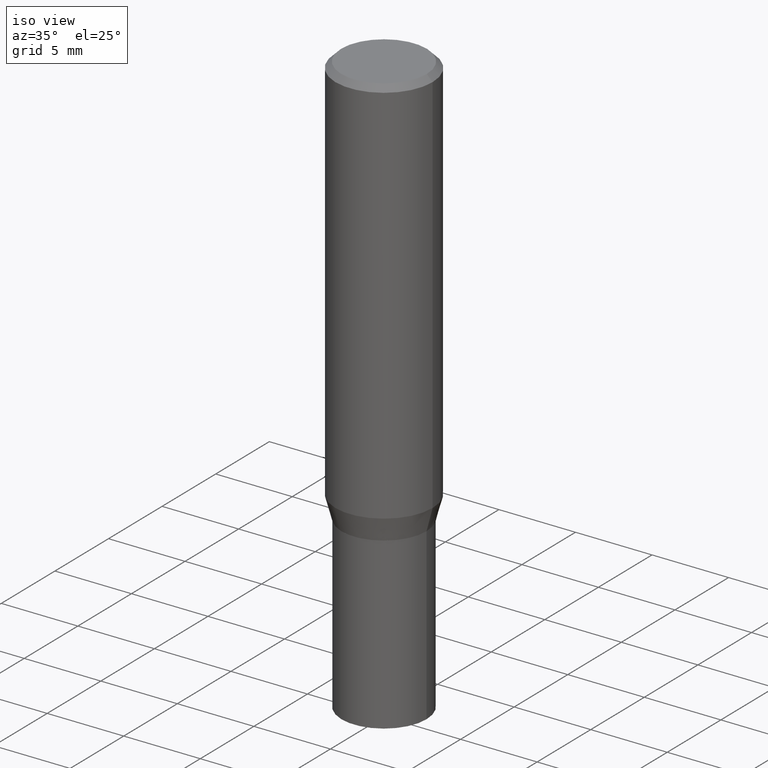
[diagram: clean part render]
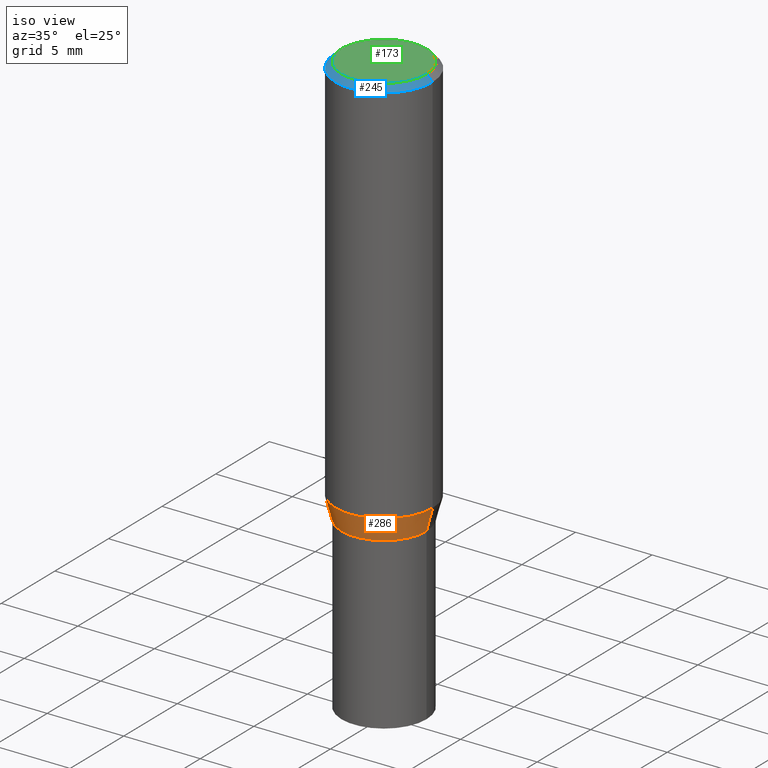
[diagram: same view with three faces highlighted in distinct colors, each labeled with its STEP entity id]
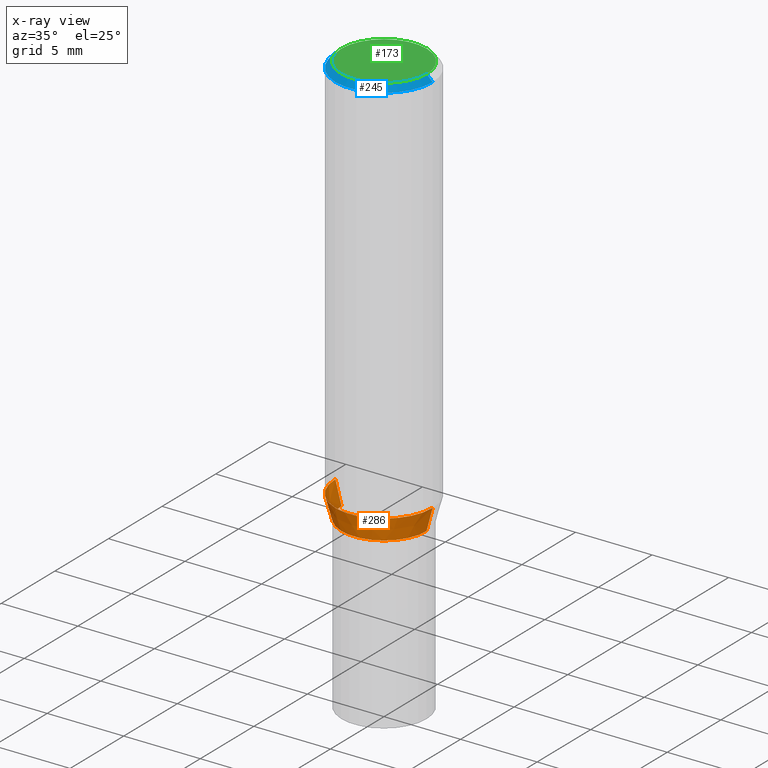
[diagram: x-ray of the same camera — body ghosted, the three highlighted faces saturated]
A machine part, iso view with three faces highlighted in distinct colors.
The next image is the same camera in x-ray (body ghosted, the three faces saturated) — at least one of them is partly hidden behind the body in this view.
Their STEP definitions:

[orange] entity #286 — the highlighted conical surface has half-angle 15 deg.
#9 = EDGE_CURVE ( 'NONE', #289, #229, #49, .T. ) ;
#15 = AXIS2_PLACEMENT_3D ( 'NONE', #407, #20, #89 ) ;
#16 = AXIS2_PLACEMENT_3D ( 'NONE', #453, #306, #266 ) ;
#17 = CARTESIAN_POINT ( 'NONE',  ( -0.1250000000000000000, -2.619992225786377762E-15, -1.004780007401926190 ) ) ;
#20 = DIRECTION ( 'NONE',  ( -2.445468806185136597E-29, 3.491481338843145583E-15, 1.000000000000000000 ) ) ;
#23 = FACE_OUTER_BOUND ( 'NONE', #251, .T. ) ;
#46 = LINE ( 'NONE', #117, #355 ) ;
#48 = EDGE_CURVE ( 'NONE', #465, #188, #46, .T. ) ;
#49 = LINE ( 'NONE', #253, #260 ) ;
#89 = DIRECTION ( 'NONE',  ( 1.000000000000000000, -6.982962677686262766E-15, 0.000000000000000000 ) ) ;
#94 = CONICAL_SURFACE ( 'NONE', #16, 0.1094000000000000528, 0.2617993877991510732 ) ;
#96 = DIRECTION ( 'NONE',  ( -2.445468806185136597E-29, 3.491481338843145583E-15, 1.000000000000000000 ) ) ;
#99 = CARTESIAN_POINT ( 'NONE',  ( 2.599533340974800436E-29, -3.711444663190264104E-15, -1.063000000000000167 ) ) ;
#117 = CARTESIAN_POINT ( 'NONE',  ( -0.1094000000000000528, -2.934110910268714126E-15, -1.063000000000000167 ) ) ;
#135 = ORIENTED_EDGE ( 'NONE', *, *, #48, .F. ) ;
#164 = CARTESIAN_POINT ( 'NONE',  ( 0.1250000000000000000, -4.381040980197285939E-15, -1.004780007401926190 ) ) ;
#174 = ORIENTED_EDGE ( 'NONE', *, *, #9, .T. ) ;
#188 = VERTEX_POINT ( 'NONE', #17 ) ;
#192 = CIRCLE ( 'NONE', #252, 0.1094000000000000528 ) ;
#206 = EDGE_CURVE ( 'NONE', #188, #229, #425, .T. ) ;
#208 = ORIENTED_EDGE ( 'NONE', *, *, #206, .F. ) ;
#229 = VERTEX_POINT ( 'NONE', #164 ) ;
#251 = EDGE_LOOP ( 'NONE', ( #135, #375, #174, #208 ) ) ;
#252 = AXIS2_PLACEMENT_3D ( 'NONE', #99, #96, #379 ) ;
#253 = CARTESIAN_POINT ( 'NONE',  ( 0.1094000000000000528, -4.475380780129141676E-15, -1.063000000000000167 ) ) ;
#260 = VECTOR ( 'NONE', #363, 39.37007874015748143 ) ;
#266 = DIRECTION ( 'NONE',  ( 1.000000000000000000, -6.982962677686265922E-15, 0.000000000000000000 ) ) ;
#270 = EDGE_CURVE ( 'NONE', #465, #289, #192, .T. ) ;
#286 = ADVANCED_FACE ( 'NONE', ( #23 ), #94, .T. ) ;
#289 = VERTEX_POINT ( 'NONE', #354 ) ;
#306 = DIRECTION ( 'NONE',  ( -2.445468806185136597E-29, 3.491481338843145583E-15, 1.000000000000000000 ) ) ;
#329 = DIRECTION ( 'NONE',  ( -0.2588190451025223493, 5.211531920934556564E-15, 0.9659258262890678681 ) ) ;
#354 = CARTESIAN_POINT ( 'NONE',  ( 0.1094000000000000528, -4.475380780129141676E-15, -1.063000000000000167 ) ) ;
#355 = VECTOR ( 'NONE', #329, 39.37007874015748143 ) ;
#363 = DIRECTION ( 'NONE',  ( 0.2588190451025223493, 1.565188264969614276E-15, 0.9659258262890678681 ) ) ;
#375 = ORIENTED_EDGE ( 'NONE', *, *, #270, .T. ) ;
#379 = DIRECTION ( 'NONE',  ( 1.000000000000000000, -6.982962677686265922E-15, 0.000000000000000000 ) ) ;
#407 = CARTESIAN_POINT ( 'NONE',  ( 2.457158165179881134E-29, -3.508170645486503389E-15, -1.004780007401926190 ) ) ;
#425 = CIRCLE ( 'NONE', #15, 0.1250000000000000000 ) ;
#444 = CARTESIAN_POINT ( 'NONE',  ( -0.1094000000000000528, -2.777051568027545747E-15, -1.063000000000000167 ) ) ;
#453 = CARTESIAN_POINT ( 'NONE',  ( 2.599533340974800436E-29, -3.711444663190264104E-15, -1.063000000000000167 ) ) ;
#465 = VERTEX_POINT ( 'NONE', #444 ) ;

[blue] entity #245 — the highlighted conical surface has half-angle 45 deg.
#13 = EDGE_CURVE ( 'NONE', #138, #315, #53, .T. ) ;
#34 = LINE ( 'NONE', #178, #440 ) ;
#38 = DIRECTION ( 'NONE',  ( -0.7071067811865475727, 2.468850131082257455E-15, -0.7071067811865474617 ) ) ;
#53 = CIRCLE ( 'NONE', #456, 0.1100000000000000006 ) ;
#73 = CARTESIAN_POINT ( 'NONE',  ( 0.1100000000000000006, -8.322946247794786836E-16, -7.674416657715788472E-18 ) ) ;
#79 = CONICAL_SURFACE ( 'NONE', #335, 0.1250000000000000000, 0.7853981633974483900 ) ;
#84 = DIRECTION ( 'NONE',  ( 1.000000000000000000, -6.982962677686266711E-15, 4.876001053725558154E-29 ) ) ;
#114 = VERTEX_POINT ( 'NONE', #157 ) ;
#118 = DIRECTION ( 'NONE',  ( 1.000000000000000000, -6.982962677686266711E-15, 0.000000000000000000 ) ) ;
#138 = VERTEX_POINT ( 'NONE', #373 ) ;
#157 = CARTESIAN_POINT ( 'NONE',  ( 0.1250000000000000000, -9.252425547934304180E-16, -0.01499999999999999944 ) ) ;
#160 = EDGE_CURVE ( 'NONE', #305, #114, #417, .T. ) ;
#166 = ORIENTED_EDGE ( 'NONE', *, *, #160, .T. ) ;
#178 = CARTESIAN_POINT ( 'NONE',  ( -0.1250000000000000000, 8.204981146281362596E-16, -0.01499999999999999944 ) ) ;
#191 = DIRECTION ( 'NONE',  ( -2.445468806185136597E-29, 3.491481338843145583E-15, 1.000000000000000000 ) ) ;
#215 = ORIENTED_EDGE ( 'NONE', *, *, #436, .F. ) ;
#223 = CARTESIAN_POINT ( 'NONE',  ( 1.876754654212523840E-46, -2.679508254694119990E-32, -7.674416657721384454E-18 ) ) ;
#225 = VECTOR ( 'NONE', #279, 39.37007874015748143 ) ;
#243 = DIRECTION ( 'NONE',  ( 2.445468806185136597E-29, -3.491481338843145583E-15, -1.000000000000000000 ) ) ;
#245 = ADVANCED_FACE ( 'NONE', ( #342 ), #79, .T. ) ;
#269 = CARTESIAN_POINT ( 'NONE',  ( 3.668203209277705088E-31, -5.237222008264718399E-17, -0.01499999999999999944 ) ) ;
#279 = DIRECTION ( 'NONE',  ( 0.7071067811865475727, -7.319954787623256045E-15, -0.7071067811865474617 ) ) ;
#305 = VERTEX_POINT ( 'NONE', #391 ) ;
#315 = VERTEX_POINT ( 'NONE', #73 ) ;
#316 = LINE ( 'NONE', #463, #225 ) ;
#322 = EDGE_LOOP ( 'NONE', ( #215, #452, #438, #166 ) ) ;
#333 = CARTESIAN_POINT ( 'NONE',  ( 3.668203209277705088E-31, -5.237222008264718399E-17, -0.01499999999999999944 ) ) ;
#335 = AXIS2_PLACEMENT_3D ( 'NONE', #269, #243, #466 ) ;
#342 = FACE_OUTER_BOUND ( 'NONE', #322, .T. ) ;
#373 = CARTESIAN_POINT ( 'NONE',  ( -0.1100000000000000006, 7.943120045868128186E-16, -7.674416657726847932E-18 ) ) ;
#376 = AXIS2_PLACEMENT_3D ( 'NONE', #333, #191, #118 ) ;
#391 = CARTESIAN_POINT ( 'NONE',  ( -0.1250000000000000000, -8.920930130844498047E-16, -0.01499999999999999944 ) ) ;
#401 = DIRECTION ( 'NONE',  ( -2.445468806185136597E-29, 3.491481338843145583E-15, 1.000000000000000000 ) ) ;
#417 = CIRCLE ( 'NONE', #376, 0.1250000000000000000 ) ;
#435 = EDGE_CURVE ( 'NONE', #138, #305, #34, .T. ) ;
#436 = EDGE_CURVE ( 'NONE', #315, #114, #316, .T. ) ;
#438 = ORIENTED_EDGE ( 'NONE', *, *, #435, .T. ) ;
#440 = VECTOR ( 'NONE', #38, 39.37007874015748143 ) ;
#452 = ORIENTED_EDGE ( 'NONE', *, *, #13, .F. ) ;
#456 = AXIS2_PLACEMENT_3D ( 'NONE', #223, #401, #84 ) ;
#463 = CARTESIAN_POINT ( 'NONE',  ( 0.1250000000000000000, -9.099344698040885245E-16, -0.01499999999999999944 ) ) ;
#466 = DIRECTION ( 'NONE',  ( -1.000000000000000000, 6.982962677686266711E-15, 0.000000000000000000 ) ) ;

[green] entity #173 — the highlighted planar face has unit normal (0, -0, -1).
#13 = EDGE_CURVE ( 'NONE', #138, #315, #53, .T. ) ;
#21 = EDGE_CURVE ( 'NONE', #315, #138, #344, .T. ) ;
#53 = CIRCLE ( 'NONE', #456, 0.1100000000000000006 ) ;
#73 = CARTESIAN_POINT ( 'NONE',  ( 0.1100000000000000006, -8.322946247794786836E-16, -7.674416657715788472E-18 ) ) ;
#84 = DIRECTION ( 'NONE',  ( 1.000000000000000000, -6.982962677686266711E-15, 4.876001053725558154E-29 ) ) ;
#91 = DIRECTION ( 'NONE',  ( 2.438088387897960049E-29, -3.491481338843145188E-15, -1.000000000000000000 ) ) ;
#138 = VERTEX_POINT ( 'NONE', #373 ) ;
#161 = FACE_OUTER_BOUND ( 'NONE', #337, .T. ) ;
#173 = ADVANCED_FACE ( 'NONE', ( #161 ), #257, .F. ) ;
#209 = AXIS2_PLACEMENT_3D ( 'NONE', #262, #91, #450 ) ;
#223 = CARTESIAN_POINT ( 'NONE',  ( 1.876754654212523840E-46, -2.679508254694119990E-32, -7.674416657721384454E-18 ) ) ;
#238 = ORIENTED_EDGE ( 'NONE', *, *, #21, .T. ) ;
#257 = PLANE ( 'NONE',  #209 ) ;
#262 = CARTESIAN_POINT ( 'NONE',  ( 7.681258945454893776E-16, 0.1100000000000000006, -3.879001556016067477E-16 ) ) ;
#292 = DIRECTION ( 'NONE',  ( 1.000000000000000000, -6.982962677686266711E-15, 4.876001053725558154E-29 ) ) ;
#315 = VERTEX_POINT ( 'NONE', #73 ) ;
#337 = EDGE_LOOP ( 'NONE', ( #424, #238 ) ) ;
#344 = CIRCLE ( 'NONE', #385, 0.1100000000000000006 ) ;
#368 = CARTESIAN_POINT ( 'NONE',  ( 1.876754654212523840E-46, -2.679508254694119990E-32, -7.674416657721384454E-18 ) ) ;
#373 = CARTESIAN_POINT ( 'NONE',  ( -0.1100000000000000006, 7.943120045868128186E-16, -7.674416657726847932E-18 ) ) ;
#385 = AXIS2_PLACEMENT_3D ( 'NONE', #368, #439, #292 ) ;
#401 = DIRECTION ( 'NONE',  ( -2.445468806185136597E-29, 3.491481338843145583E-15, 1.000000000000000000 ) ) ;
#424 = ORIENTED_EDGE ( 'NONE', *, *, #13, .T. ) ;
#439 = DIRECTION ( 'NONE',  ( -2.445468806185136597E-29, 3.491481338843145583E-15, 1.000000000000000000 ) ) ;
#450 = DIRECTION ( 'NONE',  ( -1.000000000000000000, 6.982962677686265922E-15, -4.876176775795935793E-29 ) ) ;
#456 = AXIS2_PLACEMENT_3D ( 'NONE', #223, #401, #84 ) ;